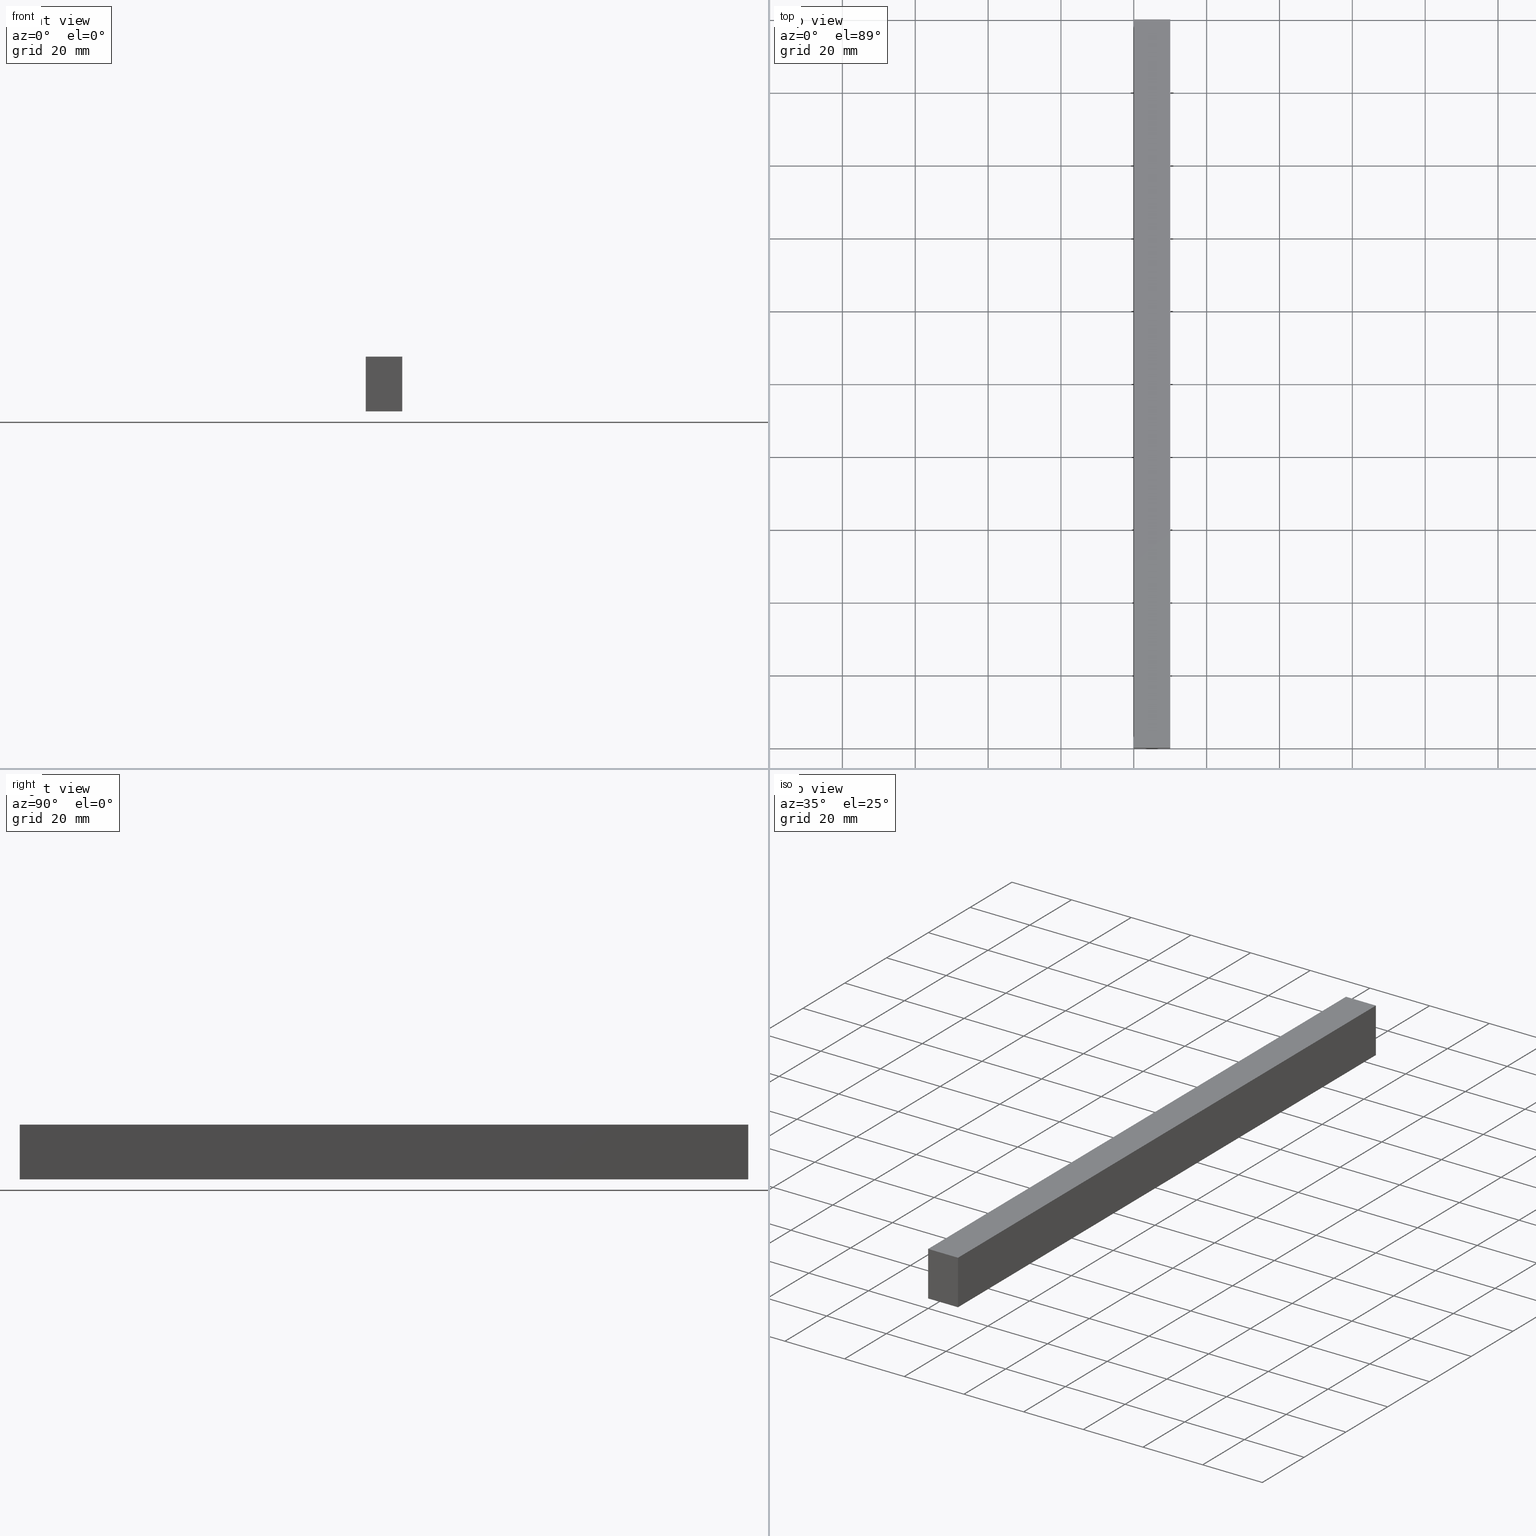
[diagram: canonical four-view strip — front | top / right | iso, engineering-drawing reading convention]
A machine part, canonical four-view strip (front | top / right | iso — engineering-drawing reading convention). The complete STEP part file that produces these views, byte-faithful:
ISO-10303-21;
HEADER;
FILE_DESCRIPTION (( 'STEP AP214' ),
    '1' );
FILE_NAME ('TM_339_15_10.STEP',
    '2016-05-09T04:42:43',
    ( '' ),
    ( '' ),
    'SwSTEP 2.0',
    'SolidWorks 2015',
    '' );
FILE_SCHEMA (( 'AUTOMOTIVE_DESIGN' ));
ENDSEC;

DATA;
#1 = APPLICATION_CONTEXT ( 'automotive_design' ) ;
#2 = ORIENTED_EDGE ( 'NONE', *, *, #223, .F. ) ;
#3 = DIRECTION ( 'NONE',  ( -0.0000000000000000000, -0.0000000000000000000, 1.000000000000000000 ) ) ;
#4 = DIRECTION ( 'NONE',  ( 0.0000000000000000000, 0.0000000000000000000, 1.000000000000000000 ) ) ;
#5 = DIRECTION ( 'NONE',  ( 0.0000000000000000000, -1.000000000000000000, 0.0000000000000000000 ) ) ;
#6 = CARTESIAN_POINT ( 'NONE',  ( 0.0000000000000000000, 0.0000000000000000000, 0.0000000000000000000 ) ) ;
#7 = CARTESIAN_POINT ( 'NONE',  ( 0.0000000000000000000, 1000.000000000000000, 15.00000000000000000 ) ) ;
#8 = CARTESIAN_POINT ( 'NONE',  ( 0.0000000000000000000, 200.0000000000000000, 15.00000000000000000 ) ) ;
#9 = ADVANCED_FACE ( 'NONE', ( #125 ), #208, .T. ) ;
#10 = MANIFOLD_SOLID_BREP ( '���߰�1', #177 ) ;
#11 =( NAMED_UNIT ( * ) PLANE_ANGLE_UNIT ( ) SI_UNIT ( $, .RADIAN. ) );
#12 = VERTEX_POINT ( 'NONE', #147 ) ;
#13 = PRODUCT ( 'rubber foam', 'rubber foam', '', ( #25 ) ) ;
#14 = SHAPE_DEFINITION_REPRESENTATION ( #235, #79 ) ;
#15 = AXIS2_PLACEMENT_3D ( 'NONE', #85, #156, #165 ) ;
#16 = ADVANCED_BREP_SHAPE_REPRESENTATION ( '', ( #10, #68 ), #52 ) ;
#17 = VERTEX_POINT ( 'NONE', #186 ) ;
#18 = PRODUCT_DEFINITION ( 'UNKNOWN', '', #33, #145 ) ;
#19 = FACE_OUTER_BOUND ( 'NONE', #75, .T. ) ;
#20 = APPLICATION_CONTEXT ( 'automotive_design' ) ;
#21 = ORIENTED_EDGE ( 'NONE', *, *, #212, .T. ) ;
#22 = DIRECTION ( 'NONE',  ( 0.0000000000000000000, -1.000000000000000000, 0.0000000000000000000 ) ) ;
#23 = CARTESIAN_POINT ( 'NONE',  ( 10.00000000000000000, 200.0000000000000000, 0.0000000000000000000 ) ) ;
#24 = SURFACE_STYLE_USAGE ( .BOTH. , #139 ) ;
#25 = PRODUCT_CONTEXT ( 'NONE', #20, 'mechanical' ) ;
#26 = ADVANCED_FACE ( 'NONE', ( #232 ), #118, .T. ) ;
#27 = UNCERTAINTY_MEASURE_WITH_UNIT (LENGTH_MEASURE( 1.000000000000000100E-005 ), #106, 'distance_accuracy_value', 'NONE');
#28 =( GEOMETRIC_REPRESENTATION_CONTEXT ( 3 ) GLOBAL_UNCERTAINTY_ASSIGNED_CONTEXT ( ( #35 ) ) GLOBAL_UNIT_ASSIGNED_CONTEXT ( ( #220, #11, #221 ) ) REPRESENTATION_CONTEXT ( 'NONE', 'WORKASPACE' ) );
#29 = AXIS2_PLACEMENT_3D ( 'NONE', #229, #170, #149 ) ;
#30 = ORIENTED_EDGE ( 'NONE', *, *, #119, .T. ) ;
#31 = PRODUCT ( 'TM_339_15_10', 'TM_339_15_10', '', ( #197 ) ) ;
#32 = SHAPE_REPRESENTATION_RELATIONSHIP ( 'NONE' , 'NONE' ,  #79, #16 ) ;
#33 = PRODUCT_DEFINITION_FORMATION_WITH_SPECIFIED_SOURCE ( 'ANY', '', #31, .NOT_KNOWN. ) ;
#34 = VECTOR ( 'NONE', #109, 1000.000000000000000 ) ;
#35 = UNCERTAINTY_MEASURE_WITH_UNIT (LENGTH_MEASURE( 1.000000000000000100E-005 ), #220, 'distance_accuracy_value', 'NONE');
#36 = ORIENTED_EDGE ( 'NONE', *, *, #187, .T. ) ;
#37 = MECHANICAL_DESIGN_GEOMETRIC_PRESENTATION_REPRESENTATION (  '', ( #237 ), #28 ) ;
#38 = SHAPE_DEFINITION_REPRESENTATION ( #107, #77 ) ;
#39 = CARTESIAN_POINT ( 'NONE',  ( 0.0000000000000000000, 200.0000000000000000, 0.0000000000000000000 ) ) ;
#40 = DIRECTION ( 'NONE',  ( 0.0000000000000000000, 0.0000000000000000000, 1.000000000000000000 ) ) ;
#41 = DIRECTION ( 'NONE',  ( -1.000000000000000000, -0.0000000000000000000, -0.0000000000000000000 ) ) ;
#42 = CARTESIAN_POINT ( 'NONE',  ( 0.0000000000000000000, 0.0000000000000000000, 15.00000000000000000 ) ) ;
#43 = APPLICATION_PROTOCOL_DEFINITION ( 'draft international standard', 'automotive_design', 1998, #1 ) ;
#44 = PRODUCT_RELATED_PRODUCT_CATEGORY ( 'part', '', ( #31 ) ) ;
#45 = LINE ( 'NONE', #62, #171 ) ;
#46 = DIRECTION ( 'NONE',  ( 1.000000000000000000, 0.0000000000000000000, 0.0000000000000000000 ) ) ;
#47 = CARTESIAN_POINT ( 'NONE',  ( 0.0000000000000000000, 0.0000000000000000000, 0.0000000000000000000 ) ) ;
#48 = FACE_OUTER_BOUND ( 'NONE', #117, .T. ) ;
#49 = PRESENTATION_LAYER_ASSIGNMENT (  '', '', ( #93 ) ) ;
#50 = PRESENTATION_LAYER_ASSIGNMENT (  '', '', ( #237 ) ) ;
#51 = VECTOR ( 'NONE', #60, 1000.000000000000000 ) ;
#52 =( GEOMETRIC_REPRESENTATION_CONTEXT ( 3 ) GLOBAL_UNCERTAINTY_ASSIGNED_CONTEXT ( ( #209 ) ) GLOBAL_UNIT_ASSIGNED_CONTEXT ( ( #178, #103, #200 ) ) REPRESENTATION_CONTEXT ( 'NONE', 'WORKASPACE' ) );
#53 = EDGE_CURVE ( 'NONE', #17, #12, #154, .T. ) ;
#54 = VERTEX_POINT ( 'NONE', #104 ) ;
#55 = PRODUCT_DEFINITION_FORMATION_WITH_SPECIFIED_SOURCE ( 'ANY', '', #13, .NOT_KNOWN. ) ;
#56 = VECTOR ( 'NONE', #206, 1000.000000000000000 ) ;
#57 = UNCERTAINTY_MEASURE_WITH_UNIT (LENGTH_MEASURE( 1.000000000000000100E-005 ), #182, 'distance_accuracy_value', 'NONE');
#58 = CARTESIAN_POINT ( 'NONE',  ( 0.0000000000000000000, 200.0000000000000000, 15.00000000000000000 ) ) ;
#59 =( NAMED_UNIT ( * ) SI_UNIT ( $, .STERADIAN. ) SOLID_ANGLE_UNIT ( ) );
#60 = DIRECTION ( 'NONE',  ( 1.000000000000000000, -0.0000000000000000000, -0.0000000000000000000 ) ) ;
#61 = ORIENTED_EDGE ( 'NONE', *, *, #195, .F. ) ;
#62 = CARTESIAN_POINT ( 'NONE',  ( 0.0000000000000000000, 200.0000000000000000, 0.0000000000000000000 ) ) ;
#63 =( NAMED_UNIT ( * ) PLANE_ANGLE_UNIT ( ) SI_UNIT ( $, .RADIAN. ) );
#64 = DIRECTION ( 'NONE',  ( 1.000000000000000000, -0.0000000000000000000, -0.0000000000000000000 ) ) ;
#65 = VECTOR ( 'NONE', #5, 1000.000000000000000 ) ;
#66 = PLANE ( 'NONE',  #29 ) ;
#67 = CARTESIAN_POINT ( 'NONE',  ( 0.0000000000000000000, 200.0000000000000000, 0.0000000000000000000 ) ) ;
#68 = AXIS2_PLACEMENT_3D ( 'NONE', #217, #4, #121 ) ;
#69 = ORIENTED_EDGE ( 'NONE', *, *, #212, .F. ) ;
#70 = EDGE_CURVE ( 'NONE', #128, #161, #45, .T. ) ;
#71 = VECTOR ( 'NONE', #198, 1000.000000000000000 ) ;
#72 = PRODUCT_RELATED_PRODUCT_CATEGORY ( 'part', '', ( #13 ) ) ;
#73 = VECTOR ( 'NONE', #22, 1000.000000000000000 ) ;
#74 = ORIENTED_EDGE ( 'NONE', *, *, #53, .T. ) ;
#75 = EDGE_LOOP ( 'NONE', ( #61, #2, #21, #194 ) ) ;
#76 = APPLICATION_CONTEXT ( 'automotive_design' ) ;
#77 = SHAPE_REPRESENTATION ( 'TM_339_15_10', ( #215, #193 ), #204 ) ;
#78 = APPLICATION_CONTEXT ( 'automotive_design' ) ;
#79 = SHAPE_REPRESENTATION ( 'rubber foam', ( #68 ), #52 ) ;
#80 = FILL_AREA_STYLE ('',( #101 ) ) ;
#81 = CARTESIAN_POINT ( 'NONE',  ( 10.00000000000000000, 1000.000000000000000, 0.0000000000000000000 ) ) ;
#82 = EDGE_CURVE ( 'NONE', #158, #54, #114, .T. ) ;
#83 = CARTESIAN_POINT ( 'NONE',  ( 0.0000000000000000000, 0.0000000000000000000, 0.0000000000000000000 ) ) ;
#84 = SURFACE_STYLE_USAGE ( .BOTH. , #203 ) ;
#85 = CARTESIAN_POINT ( 'NONE',  ( 10.00000000000000000, 1000.000000000000000, 15.00000000000000000 ) ) ;
#86 = CARTESIAN_POINT ( 'NONE',  ( 0.0000000000000000000, 1000.000000000000000, 0.0000000000000000000 ) ) ;
#87 = ADVANCED_FACE ( 'NONE', ( #140 ), #153, .T. ) ;
#88 = ORIENTED_EDGE ( 'NONE', *, *, #70, .F. ) ;
#89 = DIRECTION ( 'NONE',  ( -0.0000000000000000000, -0.0000000000000000000, 1.000000000000000000 ) ) ;
#90 = ORIENTED_EDGE ( 'NONE', *, *, #70, .T. ) ;
#91 = COLOUR_RGB ( '',0.7921568627450980000, 0.8196078431372548800, 0.9333333333333333500 ) ;
#92 = ORIENTED_EDGE ( 'NONE', *, *, #183, .T. ) ;
#93 = STYLED_ITEM ( 'NONE', ( #127 ), #16 ) ;
#94 = LINE ( 'NONE', #86, #56 ) ;
#95 = EDGE_CURVE ( 'NONE', #17, #111, #144, .T. ) ;
#96 = PRODUCT_DEFINITION_SHAPE ( 'NONE', 'NONE',  #239 ) ;
#97 = SURFACE_STYLE_FILL_AREA ( #80 ) ;
#98 = LINE ( 'NONE', #47, #126 ) ;
#99 = APPLICATION_PROTOCOL_DEFINITION ( 'draft international standard', 'automotive_design', 1998, #76 ) ;
#100 = CARTESIAN_POINT ( 'NONE',  ( 10.00000000000000000, 0.0000000000000000000, 0.0000000000000000000 ) ) ;
#101 = FILL_AREA_STYLE_COLOUR ( '', #216 ) ;
#102 = PRODUCT_DEFINITION_CONTEXT ( 'detailed design', #78, 'design' ) ;
#103 =( NAMED_UNIT ( * ) PLANE_ANGLE_UNIT ( ) SI_UNIT ( $, .RADIAN. ) );
#104 = CARTESIAN_POINT ( 'NONE',  ( 0.0000000000000000000, 0.0000000000000000000, 0.0000000000000000000 ) ) ;
#105 = FILL_AREA_STYLE ('',( #222 ) ) ;
#106 =( LENGTH_UNIT ( ) NAMED_UNIT ( * ) SI_UNIT ( .MILLI., .METRE. ) );
#107 = PRODUCT_DEFINITION_SHAPE ( 'NONE', 'NONE',  #18 ) ;
#108 = ADVANCED_FACE ( 'NONE', ( #233 ), #66, .F. ) ;
#109 = DIRECTION ( 'NONE',  ( -0.0000000000000000000, -0.0000000000000000000, -1.000000000000000000 ) ) ;
#110 = AXIS2_PLACEMENT_3D ( 'NONE', #67, #138, #202 ) ;
#111 = VERTEX_POINT ( 'NONE', #207 ) ;
#112 = VECTOR ( 'NONE', #224, 1000.000000000000000 ) ;
#113 = VERTEX_POINT ( 'NONE', #120 ) ;
#114 = LINE ( 'NONE', #83, #34 ) ;
#115 = ITEM_DEFINED_TRANSFORMATION ( 'NONE', 'NONE', #193,  #68 ) ;
#116 = CARTESIAN_POINT ( 'NONE',  ( 0.0000000000000000000, 1000.000000000000000, 0.0000000000000000000 ) ) ;
#117 = EDGE_LOOP ( 'NONE', ( #150, #142, #92, #74 ) ) ;
#118 = PLANE ( 'NONE',  #143 ) ;
#119 = EDGE_CURVE ( 'NONE', #12, #113, #176, .T. ) ;
#120 = CARTESIAN_POINT ( 'NONE',  ( 10.00000000000000000, 0.0000000000000000000, 15.00000000000000000 ) ) ;
#121 = DIRECTION ( 'NONE',  ( 1.000000000000000000, 0.0000000000000000000, 0.0000000000000000000 ) ) ;
#122 = DIRECTION ( 'NONE',  ( 0.0000000000000000000, 0.0000000000000000000, 1.000000000000000000 ) ) ;
#123 = CARTESIAN_POINT ( 'NONE',  ( 10.00000000000000000, 1000.000000000000000, 15.00000000000000000 ) ) ;
#124 = ORIENTED_EDGE ( 'NONE', *, *, #223, .T. ) ;
#125 = FACE_OUTER_BOUND ( 'NONE', #175, .T. ) ;
#126 = VECTOR ( 'NONE', #64, 1000.000000000000000 ) ;
#127 = PRESENTATION_STYLE_ASSIGNMENT (( #84 ) ) ;
#128 = VERTEX_POINT ( 'NONE', #8 ) ;
#129 = ORIENTED_EDGE ( 'NONE', *, *, #183, .F. ) ;
#130 = AXIS2_PLACEMENT_3D ( 'NONE', #7, #210, #191 ) ;
#131 = SURFACE_STYLE_FILL_AREA ( #105 ) ;
#132 = EDGE_LOOP ( 'NONE', ( #211, #228, #218, #124 ) ) ;
#133 = PLANE ( 'NONE',  #180 ) ;
#134 = DIRECTION ( 'NONE',  ( 1.000000000000000000, 0.0000000000000000000, 0.0000000000000000000 ) ) ;
#135 = DIRECTION ( 'NONE',  ( 0.0000000000000000000, 0.0000000000000000000, -1.000000000000000000 ) ) ;
#136 = CARTESIAN_POINT ( 'NONE',  ( 0.0000000000000000000, 200.0000000000000000, 0.0000000000000000000 ) ) ;
#137 = MECHANICAL_DESIGN_GEOMETRIC_PRESENTATION_REPRESENTATION (  '', ( #93 ), #146 ) ;
#138 = DIRECTION ( 'NONE',  ( -0.0000000000000000000, 1.000000000000000000, 0.0000000000000000000 ) ) ;
#139 = SURFACE_SIDE_STYLE ('',( #97 ) ) ;
#140 = FACE_OUTER_BOUND ( 'NONE', #192, .T. ) ;
#141 = LINE ( 'NONE', #136, #51 ) ;
#142 = ORIENTED_EDGE ( 'NONE', *, *, #152, .F. ) ;
#143 = AXIS2_PLACEMENT_3D ( 'NONE', #81, #46, #189 ) ;
#144 = LINE ( 'NONE', #23, #190 ) ;
#145 = PRODUCT_DEFINITION_CONTEXT ( 'detailed design', #1, 'design' ) ;
#146 =( GEOMETRIC_REPRESENTATION_CONTEXT ( 3 ) GLOBAL_UNCERTAINTY_ASSIGNED_CONTEXT ( ( #57 ) ) GLOBAL_UNIT_ASSIGNED_CONTEXT ( ( #182, #63, #166 ) ) REPRESENTATION_CONTEXT ( 'NONE', 'WORKASPACE' ) );
#147 = CARTESIAN_POINT ( 'NONE',  ( 10.00000000000000000, 0.0000000000000000000, 0.0000000000000000000 ) ) ;
#148 = DIRECTION ( 'NONE',  ( 1.000000000000000000, 0.0000000000000000000, 0.0000000000000000000 ) ) ;
#149 = DIRECTION ( 'NONE',  ( 1.000000000000000000, 0.0000000000000000000, 0.0000000000000000000 ) ) ;
#150 = ORIENTED_EDGE ( 'NONE', *, *, #187, .F. ) ;
#151 = CARTESIAN_POINT ( 'NONE',  ( 0.0000000000000000000, 0.0000000000000000000, 0.0000000000000000000 ) ) ;
#152 = EDGE_CURVE ( 'NONE', #161, #54, #94, .T. ) ;
#153 = PLANE ( 'NONE',  #110 ) ;
#154 = LINE ( 'NONE', #181, #73 ) ;
#155 = LINE ( 'NONE', #123, #71 ) ;
#156 = DIRECTION ( 'NONE',  ( 0.0000000000000000000, 0.0000000000000000000, 1.000000000000000000 ) ) ;
#157 = CARTESIAN_POINT ( 'NONE',  ( 0.0000000000000000000, 1000.000000000000000, 15.00000000000000000 ) ) ;
#158 = VERTEX_POINT ( 'NONE', #226 ) ;
#159 = VECTOR ( 'NONE', #41, 1000.000000000000000 ) ;
#160 =( REPRESENTATION_RELATIONSHIP ('NONE','NONE', #77, #79 ) REPRESENTATION_RELATIONSHIP_WITH_TRANSFORMATION ( #115 )SHAPE_REPRESENTATION_RELATIONSHIP( ) );
#161 = VERTEX_POINT ( 'NONE', #39 ) ;
#162 = LINE ( 'NONE', #157, #65 ) ;
#163 = ORIENTED_EDGE ( 'NONE', *, *, #82, .T. ) ;
#164 = DIRECTION ( 'NONE',  ( -1.000000000000000000, 0.0000000000000000000, 0.0000000000000000000 ) ) ;
#165 = DIRECTION ( 'NONE',  ( 1.000000000000000000, 0.0000000000000000000, 0.0000000000000000000 ) ) ;
#166 =( NAMED_UNIT ( * ) SI_UNIT ( $, .STERADIAN. ) SOLID_ANGLE_UNIT ( ) );
#167 = PLANE ( 'NONE',  #15 ) ;
#168 = APPLICATION_PROTOCOL_DEFINITION ( 'draft international standard', 'automotive_design', 1998, #20 ) ;
#169 = ADVANCED_FACE ( 'NONE', ( #48 ), #133, .T. ) ;
#170 = DIRECTION ( 'NONE',  ( -0.0000000000000000000, 1.000000000000000000, 0.0000000000000000000 ) ) ;
#171 = VECTOR ( 'NONE', #219, 1000.000000000000000 ) ;
#172 = ORIENTED_EDGE ( 'NONE', *, *, #82, .F. ) ;
#173 = ORIENTED_EDGE ( 'NONE', *, *, #227, .F. ) ;
#174 = AXIS2_PLACEMENT_3D ( 'NONE', #151, #185, #134 ) ;
#175 = EDGE_LOOP ( 'NONE', ( #172, #173, #90, #201 ) ) ;
#176 = LINE ( 'NONE', #100, #238 ) ;
#177 = CLOSED_SHELL ( 'NONE', ( #9, #169, #26, #188, #87, #108 ) ) ;
#178 =( LENGTH_UNIT ( ) NAMED_UNIT ( * ) SI_UNIT ( .MILLI., .METRE. ) );
#179 =( NAMED_UNIT ( * ) PLANE_ANGLE_UNIT ( ) SI_UNIT ( $, .RADIAN. ) );
#180 = AXIS2_PLACEMENT_3D ( 'NONE', #116, #135, #164 ) ;
#181 = CARTESIAN_POINT ( 'NONE',  ( 10.00000000000000000, 1000.000000000000000, 0.0000000000000000000 ) ) ;
#182 =( LENGTH_UNIT ( ) NAMED_UNIT ( * ) SI_UNIT ( .MILLI., .METRE. ) );
#183 = EDGE_CURVE ( 'NONE', #161, #17, #141, .T. ) ;
#184 = CARTESIAN_POINT ( 'NONE',  ( 0.0000000000000000000, 0.0000000000000000000, 0.0000000000000000000 ) ) ;
#185 = DIRECTION ( 'NONE',  ( 0.0000000000000000000, 0.0000000000000000000, 1.000000000000000000 ) ) ;
#186 = CARTESIAN_POINT ( 'NONE',  ( 10.00000000000000000, 200.0000000000000000, 0.0000000000000000000 ) ) ;
#187 = EDGE_CURVE ( 'NONE', #54, #12, #98, .T. ) ;
#188 = ADVANCED_FACE ( 'NONE', ( #19 ), #167, .T. ) ;
#189 = DIRECTION ( 'NONE',  ( 0.0000000000000000000, 0.0000000000000000000, -1.000000000000000000 ) ) ;
#190 = VECTOR ( 'NONE', #3, 1000.000000000000000 ) ;
#191 = DIRECTION ( 'NONE',  ( 0.0000000000000000000, 0.0000000000000000000, 1.000000000000000000 ) ) ;
#192 = EDGE_LOOP ( 'NONE', ( #88, #69, #234, #129 ) ) ;
#193 = AXIS2_PLACEMENT_3D ( 'NONE', #6, #122, #225 ) ;
#194 = ORIENTED_EDGE ( 'NONE', *, *, #227, .T. ) ;
#195 = EDGE_CURVE ( 'NONE', #113, #158, #205, .T. ) ;
#196 = CONTEXT_DEPENDENT_SHAPE_REPRESENTATION ( #160, #96 ) ;
#197 = PRODUCT_CONTEXT ( 'NONE', #76, 'mechanical' ) ;
#198 = DIRECTION ( 'NONE',  ( 0.0000000000000000000, -1.000000000000000000, 0.0000000000000000000 ) ) ;
#199 = APPLICATION_PROTOCOL_DEFINITION ( 'draft international standard', 'automotive_design', 1998, #78 ) ;
#200 =( NAMED_UNIT ( * ) SI_UNIT ( $, .STERADIAN. ) SOLID_ANGLE_UNIT ( ) );
#201 = ORIENTED_EDGE ( 'NONE', *, *, #152, .T. ) ;
#202 = DIRECTION ( 'NONE',  ( 1.000000000000000000, 0.0000000000000000000, 0.0000000000000000000 ) ) ;
#203 = SURFACE_SIDE_STYLE ('',( #131 ) ) ;
#204 =( GEOMETRIC_REPRESENTATION_CONTEXT ( 3 ) GLOBAL_UNCERTAINTY_ASSIGNED_CONTEXT ( ( #27 ) ) GLOBAL_UNIT_ASSIGNED_CONTEXT ( ( #106, #179, #59 ) ) REPRESENTATION_CONTEXT ( 'NONE', 'WORKASPACE' ) );
#205 = LINE ( 'NONE', #42, #112 ) ;
#206 = DIRECTION ( 'NONE',  ( 0.0000000000000000000, -1.000000000000000000, 0.0000000000000000000 ) ) ;
#207 = CARTESIAN_POINT ( 'NONE',  ( 10.00000000000000000, 200.0000000000000000, 15.00000000000000000 ) ) ;
#208 = PLANE ( 'NONE',  #130 ) ;
#209 = UNCERTAINTY_MEASURE_WITH_UNIT (LENGTH_MEASURE( 1.000000000000000100E-005 ), #178, 'distance_accuracy_value', 'NONE');
#210 = DIRECTION ( 'NONE',  ( -1.000000000000000000, 0.0000000000000000000, 0.0000000000000000000 ) ) ;
#211 = ORIENTED_EDGE ( 'NONE', *, *, #119, .F. ) ;
#212 = EDGE_CURVE ( 'NONE', #111, #128, #213, .T. ) ;
#213 = LINE ( 'NONE', #58, #159 ) ;
#214 = EDGE_LOOP ( 'NONE', ( #163, #36, #30, #230 ) ) ;
#215 = AXIS2_PLACEMENT_3D ( 'NONE', #184, #40, #148 ) ;
#216 = COLOUR_RGB ( '',0.7921568627450980000, 0.8196078431372548800, 0.9333333333333333500 ) ;
#217 = CARTESIAN_POINT ( 'NONE',  ( 0.0000000000000000000, 0.0000000000000000000, 0.0000000000000000000 ) ) ;
#218 = ORIENTED_EDGE ( 'NONE', *, *, #95, .T. ) ;
#219 = DIRECTION ( 'NONE',  ( -0.0000000000000000000, -0.0000000000000000000, -1.000000000000000000 ) ) ;
#220 =( LENGTH_UNIT ( ) NAMED_UNIT ( * ) SI_UNIT ( .MILLI., .METRE. ) );
#221 =( NAMED_UNIT ( * ) SI_UNIT ( $, .STERADIAN. ) SOLID_ANGLE_UNIT ( ) );
#222 = FILL_AREA_STYLE_COLOUR ( '', #91 ) ;
#223 = EDGE_CURVE ( 'NONE', #111, #113, #155, .T. ) ;
#224 = DIRECTION ( 'NONE',  ( -1.000000000000000000, -0.0000000000000000000, -0.0000000000000000000 ) ) ;
#225 = DIRECTION ( 'NONE',  ( 1.000000000000000000, 0.0000000000000000000, 0.0000000000000000000 ) ) ;
#226 = CARTESIAN_POINT ( 'NONE',  ( 0.0000000000000000000, 0.0000000000000000000, 15.00000000000000000 ) ) ;
#227 = EDGE_CURVE ( 'NONE', #128, #158, #162, .T. ) ;
#228 = ORIENTED_EDGE ( 'NONE', *, *, #53, .F. ) ;
#229 = CARTESIAN_POINT ( 'NONE',  ( 0.0000000000000000000, 0.0000000000000000000, 0.0000000000000000000 ) ) ;
#230 = ORIENTED_EDGE ( 'NONE', *, *, #195, .T. ) ;
#231 = PRODUCT_DEFINITION ( 'UNKNOWN', '', #55, #102 ) ;
#232 = FACE_OUTER_BOUND ( 'NONE', #132, .T. ) ;
#233 = FACE_OUTER_BOUND ( 'NONE', #214, .T. ) ;
#234 = ORIENTED_EDGE ( 'NONE', *, *, #95, .F. ) ;
#235 = PRODUCT_DEFINITION_SHAPE ( 'NONE', 'NONE',  #231 ) ;
#236 = PRESENTATION_STYLE_ASSIGNMENT (( #24 ) ) ;
#237 = STYLED_ITEM ( 'NONE', ( #236 ), #10 ) ;
#238 = VECTOR ( 'NONE', #89, 1000.000000000000000 ) ;
#239 = NEXT_ASSEMBLY_USAGE_OCCURRENCE ( 'NAUO1', ' ', ' ', #18, #231, $ ) ;
ENDSEC;
END-ISO-10303-21;
